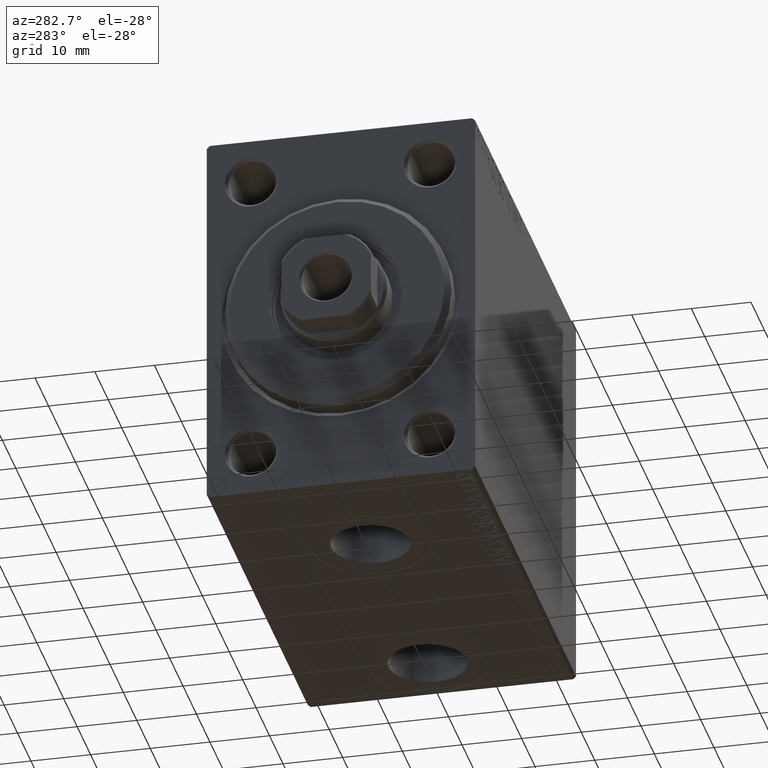
[diagram: clean part render]
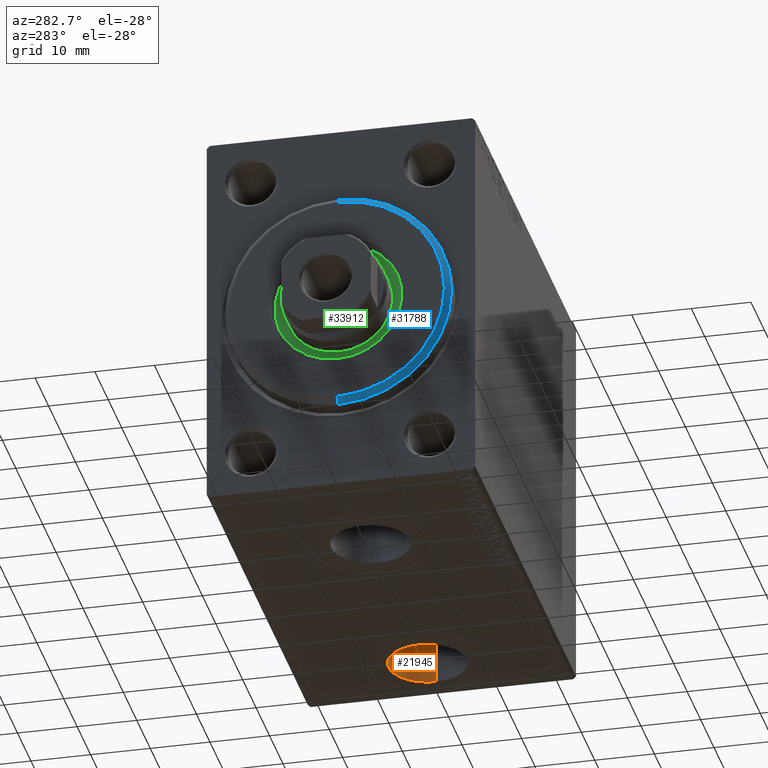
[diagram: same view with three faces highlighted in distinct colors, each labeled with its STEP entity id]
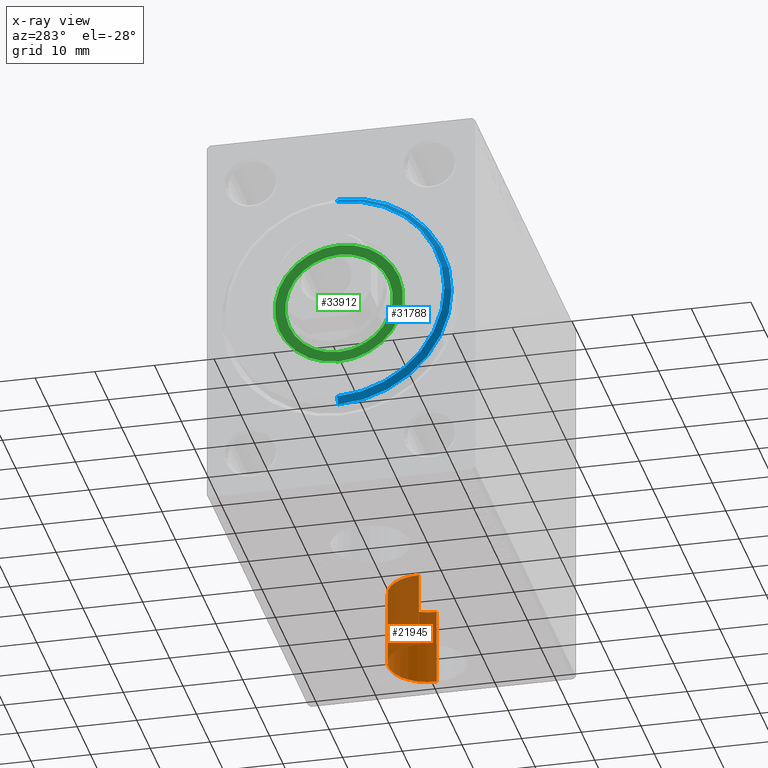
[diagram: x-ray of the same camera — body ghosted, the three highlighted faces saturated]
A machine part, auxiliary view with three faces highlighted in distinct colors.
The next image is the same camera in x-ray (body ghosted, the three faces saturated) — at least one of them is partly hidden behind the body in this view.
Their STEP definitions:

[orange] entity #21945 — the highlighted cylindrical surface (partial cylindrical patch) has radius 6.58 mm, axis along (-0, -0, -1).
#1706 = DIRECTION ( 'NONE',  ( -1.000000000000000000, 0.000000000000000000, 0.000000000000000000 ) ) ;
#4016 = CARTESIAN_POINT ( 'NONE',  ( 71.07999999999999829, -5.850147353426744223E-15, -19.50000000000000355 ) ) ;
#4196 = ORIENTED_EDGE ( 'NONE', *, *, #22769, .T. ) ;
#4943 = CARTESIAN_POINT ( 'NONE',  ( 64.50000000000000000, -6.655964947265702476E-15, -19.50000000000000355 ) ) ;
#7465 = EDGE_CURVE ( 'NONE', #35091, #10284, #23196, .T. ) ;
#10284 = VERTEX_POINT ( 'NONE', #24438 ) ;
#10340 = DIRECTION ( 'NONE',  ( -1.000000000000000000, 0.000000000000000000, 0.000000000000000000 ) ) ;
#10703 = DIRECTION ( 'NONE',  ( -0.000000000000000000, -0.000000000000000000, -1.000000000000000000 ) ) ;
#11112 = VERTEX_POINT ( 'NONE', #16417 ) ;
#11883 = CARTESIAN_POINT ( 'NONE',  ( 57.92000000000000171, -6.655964947265702476E-15, -19.50000000000000355 ) ) ;
#13177 = ORIENTED_EDGE ( 'NONE', *, *, #32251, .T. ) ;
#13447 = VECTOR ( 'NONE', #10703, 1000.000000000000000 ) ;
#13797 = CARTESIAN_POINT ( 'NONE',  ( 64.50000000000000000, -6.655964947265702476E-15, -32.40000000000000568 ) ) ;
#16417 = CARTESIAN_POINT ( 'NONE',  ( 57.92000000000000171, -6.655964947265702476E-15, -32.40000000000000568 ) ) ;
#16681 = EDGE_LOOP ( 'NONE', ( #25396, #26807, #13177, #4196 ) ) ;
#18064 = LINE ( 'NONE', #42965, #44907 ) ;
#20236 = FACE_OUTER_BOUND ( 'NONE', #16681, .T. ) ;
#21945 = ADVANCED_FACE ( 'NONE', ( #20236 ), #35212, .F. ) ;
#22649 = AXIS2_PLACEMENT_3D ( 'NONE', #31532, #24376, #31074 ) ;
#22769 = EDGE_CURVE ( 'NONE', #11112, #36759, #27058, .T. ) ;
#23196 = CIRCLE ( 'NONE', #31306, 6.580000000000002736 ) ;
#24376 = DIRECTION ( 'NONE',  ( -0.000000000000000000, -0.000000000000000000, -1.000000000000000000 ) ) ;
#24438 = CARTESIAN_POINT ( 'NONE',  ( 71.07999999999999829, -5.850147353426744223E-15, -19.50000000000000355 ) ) ;
#25396 = ORIENTED_EDGE ( 'NONE', *, *, #39483, .F. ) ;
#26807 = ORIENTED_EDGE ( 'NONE', *, *, #7465, .F. ) ;
#27058 = CIRCLE ( 'NONE', #32966, 6.580000000000002736 ) ;
#28081 = DIRECTION ( 'NONE',  ( 0.000000000000000000, 0.000000000000000000, -1.000000000000000000 ) ) ;
#29357 = DIRECTION ( 'NONE',  ( -0.000000000000000000, -0.000000000000000000, -1.000000000000000000 ) ) ;
#31074 = DIRECTION ( 'NONE',  ( -1.000000000000000000, 0.000000000000000000, 0.000000000000000000 ) ) ;
#31306 = AXIS2_PLACEMENT_3D ( 'NONE', #4943, #36974, #1706 ) ;
#31532 = CARTESIAN_POINT ( 'NONE',  ( 64.50000000000000000, -6.655964947265702476E-15, -19.50000000000000355 ) ) ;
#31691 = LINE ( 'NONE', #4016, #13447 ) ;
#32251 = EDGE_CURVE ( 'NONE', #35091, #11112, #18064, .T. ) ;
#32966 = AXIS2_PLACEMENT_3D ( 'NONE', #13797, #28081, #10340 ) ;
#35091 = VERTEX_POINT ( 'NONE', #11883 ) ;
#35212 = CYLINDRICAL_SURFACE ( 'NONE', #22649, 6.580000000000002736 ) ;
#36759 = VERTEX_POINT ( 'NONE', #43035 ) ;
#36974 = DIRECTION ( 'NONE',  ( 0.000000000000000000, 0.000000000000000000, -1.000000000000000000 ) ) ;
#39483 = EDGE_CURVE ( 'NONE', #10284, #36759, #31691, .T. ) ;
#42965 = CARTESIAN_POINT ( 'NONE',  ( 57.92000000000000171, -6.655964947265702476E-15, -19.50000000000000355 ) ) ;
#43035 = CARTESIAN_POINT ( 'NONE',  ( 71.07999999999999829, -5.850147353426744223E-15, -32.40000000000000568 ) ) ;
#44907 = VECTOR ( 'NONE', #29357, 1000.000000000000000 ) ;

[blue] entity #31788 — the highlighted conical surface has half-angle 45 deg.
#439 = ORIENTED_EDGE ( 'NONE', *, *, #3379, .T. ) ;
#611 = AXIS2_PLACEMENT_3D ( 'NONE', #36217, #4635, #18687 ) ;
#3379 = EDGE_CURVE ( 'NONE', #12208, #23869, #13175, .T. ) ;
#3400 = LINE ( 'NONE', #30597, #9652 ) ;
#3598 = CARTESIAN_POINT ( 'NONE',  ( 3.000000000000000000, 0.000000000000000000, 0.000000000000000000 ) ) ;
#4635 = DIRECTION ( 'NONE',  ( -1.000000000000000000, 0.000000000000000000, 0.000000000000000000 ) ) ;
#7755 = CIRCLE ( 'NONE', #12191, 17.99999999999999645 ) ;
#9629 = CARTESIAN_POINT ( 'NONE',  ( 3.000000000000000000, 2.265596578422603002E-15, -17.99999999999999645 ) ) ;
#9652 = VECTOR ( 'NONE', #41672, 1000.000000000000000 ) ;
#10176 = DIRECTION ( 'NONE',  ( -0.7071067811865487940, 8.659560562354918067E-17, -0.7071067811865463515 ) ) ;
#10737 = DIRECTION ( 'NONE',  ( 0.000000000000000000, 0.000000000000000000, 1.000000000000000000 ) ) ;
#11671 = DIRECTION ( 'NONE',  ( 1.000000000000000000, -0.000000000000000000, 0.000000000000000000 ) ) ;
#12179 = CARTESIAN_POINT ( 'NONE',  ( 1.999999999999992228, 0.000000000000000000, 19.00000000000000000 ) ) ;
#12191 = AXIS2_PLACEMENT_3D ( 'NONE', #25718, #11671, #22708 ) ;
#12208 = VERTEX_POINT ( 'NONE', #9629 ) ;
#12261 = ORIENTED_EDGE ( 'NONE', *, *, #42600, .F. ) ;
#13175 = LINE ( 'NONE', #27233, #37099 ) ;
#15645 = EDGE_CURVE ( 'NONE', #12208, #21433, #7755, .T. ) ;
#16972 = CARTESIAN_POINT ( 'NONE',  ( 1.999999999999992228, 2.326828918379970970E-15, -19.00000000000000000 ) ) ;
#18687 = DIRECTION ( 'NONE',  ( 0.000000000000000000, 0.000000000000000000, -1.000000000000000000 ) ) ;
#21433 = VERTEX_POINT ( 'NONE', #27910 ) ;
#21880 = VERTEX_POINT ( 'NONE', #12179 ) ;
#22708 = DIRECTION ( 'NONE',  ( 0.000000000000000000, 0.000000000000000000, -1.000000000000000000 ) ) ;
#23819 = EDGE_LOOP ( 'NONE', ( #38693, #439, #12261, #32265 ) ) ;
#23869 = VERTEX_POINT ( 'NONE', #16972 ) ;
#25718 = CARTESIAN_POINT ( 'NONE',  ( 3.000000000000000000, 0.000000000000000000, 0.000000000000000000 ) ) ;
#27233 = CARTESIAN_POINT ( 'NONE',  ( 3.000000000000000000, 2.204364238465235033E-15, -17.99999999999999645 ) ) ;
#27910 = CARTESIAN_POINT ( 'NONE',  ( 3.000000000000000000, 0.000000000000000000, 17.99999999999999645 ) ) ;
#28032 = DIRECTION ( 'NONE',  ( -1.000000000000000000, 0.000000000000000000, 0.000000000000000000 ) ) ;
#30597 = CARTESIAN_POINT ( 'NONE',  ( 3.000000000000000000, 0.000000000000000000, 17.99999999999999645 ) ) ;
#31788 = ADVANCED_FACE ( 'NONE', ( #38423 ), #43424, .T. ) ;
#32265 = ORIENTED_EDGE ( 'NONE', *, *, #35851, .F. ) ;
#35851 = EDGE_CURVE ( 'NONE', #21433, #21880, #3400, .T. ) ;
#36217 = CARTESIAN_POINT ( 'NONE',  ( 1.999999999999992228, 0.000000000000000000, 0.000000000000000000 ) ) ;
#37099 = VECTOR ( 'NONE', #10176, 1000.000000000000000 ) ;
#38423 = FACE_OUTER_BOUND ( 'NONE', #23819, .T. ) ;
#38693 = ORIENTED_EDGE ( 'NONE', *, *, #15645, .F. ) ;
#40367 = CIRCLE ( 'NONE', #611, 19.00000000000000000 ) ;
#41229 = AXIS2_PLACEMENT_3D ( 'NONE', #3598, #28032, #10737 ) ;
#41672 = DIRECTION ( 'NONE',  ( -0.7071067811865487940, 0.000000000000000000, 0.7071067811865463515 ) ) ;
#42600 = EDGE_CURVE ( 'NONE', #21880, #23869, #40367, .T. ) ;
#43424 = CONICAL_SURFACE ( 'NONE', #41229, 17.99999999999999645, 0.7853981633974466137 ) ;

[green] entity #33912 — the highlighted planar face has unit normal (-1, 0, 0).
#1149 = CARTESIAN_POINT ( 'NONE',  ( 1.499999999999999556, 1.102182119232617517E-15, 9.000000000000000000 ) ) ;
#2220 = ORIENTED_EDGE ( 'NONE', *, *, #20488, .T. ) ;
#3690 = FACE_BOUND ( 'NONE', #24348, .T. ) ;
#6278 = ORIENTED_EDGE ( 'NONE', *, *, #38459, .T. ) ;
#7545 = AXIS2_PLACEMENT_3D ( 'NONE', #17894, #38439, #42115 ) ;
#9545 = DIRECTION ( 'NONE',  ( 1.000000000000000000, 0.000000000000000000, 0.000000000000000000 ) ) ;
#10320 = VERTEX_POINT ( 'NONE', #1149 ) ;
#10608 = DIRECTION ( 'NONE',  ( 0.000000000000000000, 0.000000000000000000, -1.000000000000000000 ) ) ;
#11276 = CARTESIAN_POINT ( 'NONE',  ( 1.499999999999999556, 0.000000000000000000, 0.000000000000000000 ) ) ;
#12782 = DIRECTION ( 'NONE',  ( 0.000000000000000000, 0.000000000000000000, -1.000000000000000000 ) ) ;
#13426 = DIRECTION ( 'NONE',  ( 1.000000000000000000, 0.000000000000000000, 0.000000000000000000 ) ) ;
#15264 = AXIS2_PLACEMENT_3D ( 'NONE', #33760, #9545, #12782 ) ;
#15882 = CIRCLE ( 'NONE', #41667, 9.000000000000000000 ) ;
#16649 = DIRECTION ( 'NONE',  ( 0.000000000000000000, 0.000000000000000000, -1.000000000000000000 ) ) ;
#16739 = CIRCLE ( 'NONE', #15264, 10.75000000000000000 ) ;
#17199 = DIRECTION ( 'NONE',  ( 0.000000000000000000, 0.000000000000000000, -1.000000000000000000 ) ) ;
#17283 = EDGE_LOOP ( 'NONE', ( #6278, #2220 ) ) ;
#17886 = EDGE_CURVE ( 'NONE', #10320, #23744, #15882, .T. ) ;
#17894 = CARTESIAN_POINT ( 'NONE',  ( 1.500000000000000000, 0.000000000000000000, 0.000000000000000000 ) ) ;
#19066 = AXIS2_PLACEMENT_3D ( 'NONE', #27565, #38189, #17199 ) ;
#20488 = EDGE_CURVE ( 'NONE', #38890, #29124, #16739, .T. ) ;
#22282 = CIRCLE ( 'NONE', #7545, 10.75000000000000000 ) ;
#23105 = CARTESIAN_POINT ( 'NONE',  ( 1.500000000000000000, 1.316495309083404223E-15, -10.75000000000000000 ) ) ;
#23744 = VERTEX_POINT ( 'NONE', #37274 ) ;
#23968 = FACE_OUTER_BOUND ( 'NONE', #17283, .T. ) ;
#24348 = EDGE_LOOP ( 'NONE', ( #32597, #39282 ) ) ;
#27565 = CARTESIAN_POINT ( 'NONE',  ( 1.499999999999999556, 0.000000000000000000, 0.000000000000000000 ) ) ;
#29124 = VERTEX_POINT ( 'NONE', #38250 ) ;
#32597 = ORIENTED_EDGE ( 'NONE', *, *, #45004, .F. ) ;
#33760 = CARTESIAN_POINT ( 'NONE',  ( 1.500000000000000000, 0.000000000000000000, 0.000000000000000000 ) ) ;
#33912 = ADVANCED_FACE ( 'NONE', ( #3690, #23968 ), #38287, .T. ) ;
#34547 = CIRCLE ( 'NONE', #19066, 9.000000000000000000 ) ;
#37274 = CARTESIAN_POINT ( 'NONE',  ( 1.499999999999999556, 0.000000000000000000, -9.000000000000000000 ) ) ;
#38053 = CARTESIAN_POINT ( 'NONE',  ( 1.500000000000000000, 0.000000000000000000, 0.000000000000000000 ) ) ;
#38189 = DIRECTION ( 'NONE',  ( 1.000000000000000000, 0.000000000000000000, 0.000000000000000000 ) ) ;
#38250 = CARTESIAN_POINT ( 'NONE',  ( 1.500000000000000000, 0.000000000000000000, 10.75000000000000000 ) ) ;
#38287 = PLANE ( 'NONE',  #40564 ) ;
#38439 = DIRECTION ( 'NONE',  ( 1.000000000000000000, 0.000000000000000000, 0.000000000000000000 ) ) ;
#38459 = EDGE_CURVE ( 'NONE', #29124, #38890, #22282, .T. ) ;
#38890 = VERTEX_POINT ( 'NONE', #23105 ) ;
#39282 = ORIENTED_EDGE ( 'NONE', *, *, #17886, .F. ) ;
#40564 = AXIS2_PLACEMENT_3D ( 'NONE', #38053, #45189, #10608 ) ;
#41667 = AXIS2_PLACEMENT_3D ( 'NONE', #11276, #13426, #16649 ) ;
#42115 = DIRECTION ( 'NONE',  ( 0.000000000000000000, 0.000000000000000000, -1.000000000000000000 ) ) ;
#45004 = EDGE_CURVE ( 'NONE', #23744, #10320, #34547, .T. ) ;
#45189 = DIRECTION ( 'NONE',  ( 1.000000000000000000, 0.000000000000000000, 0.000000000000000000 ) ) ;